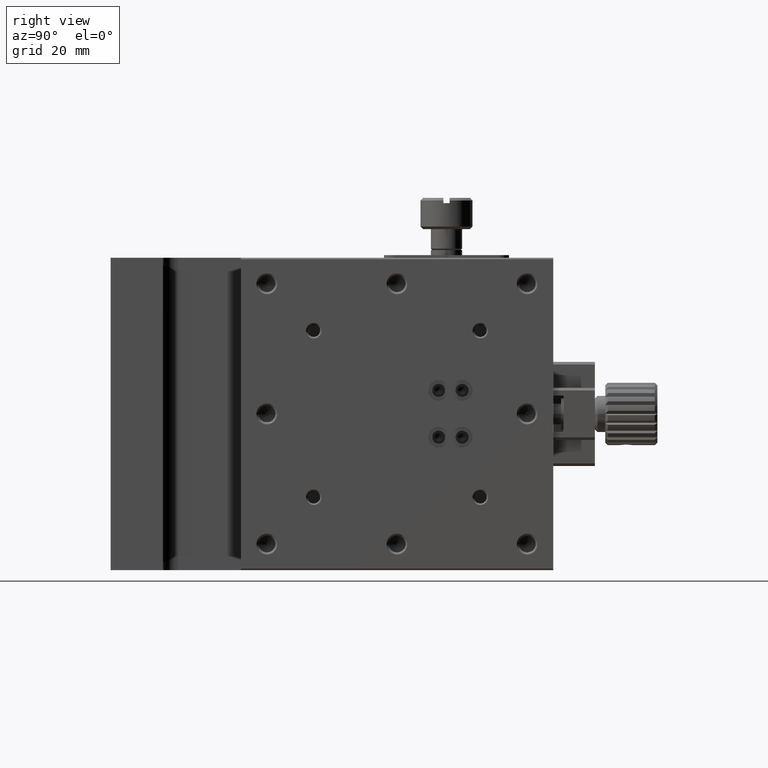
[diagram: clean part render]
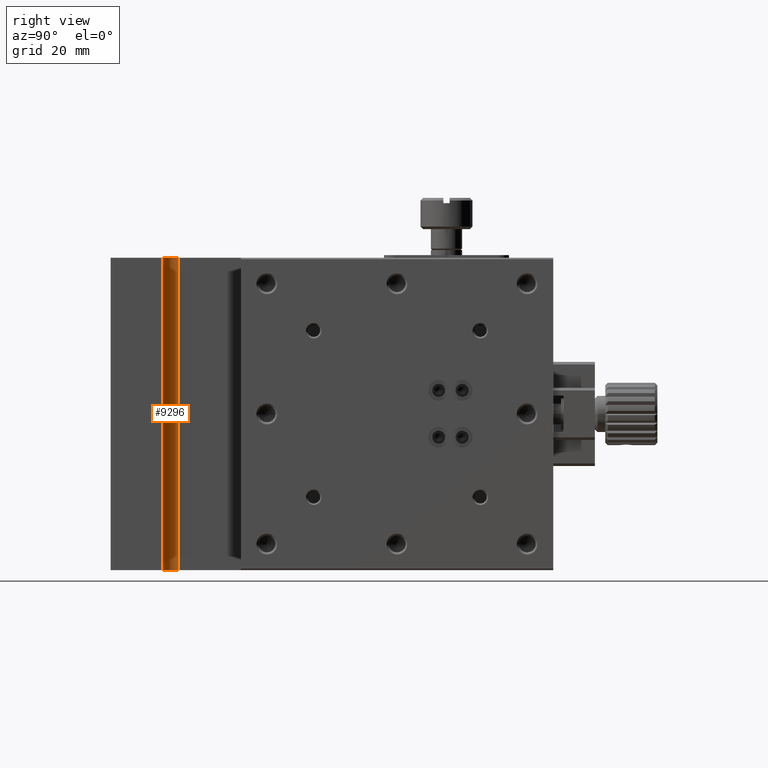
[diagram: same view with one face highlighted and labeled with its STEP entity id]
A machine part, right view. The second image highlights one B-rep face of the part: STEP entity #9296.
In plain terms, the highlighted cylindrical surface (edge-blend (fillet) strip) has radius 3 mm, axis along (0, 0, 1).
Its self-contained STEP definition (entity closure, byte-faithful):
#41 = VERTEX_POINT ( 'NONE', #7887 ) ;
#220 = VECTOR ( 'NONE', #8820, 1000.000000000000000 ) ;
#1036 = DIRECTION ( 'NONE',  ( 1.000000000000000000, 0.000000000000000000, 0.000000000000000000 ) ) ;
#2262 = CARTESIAN_POINT ( 'NONE',  ( 23.00000000000000000, 13.00000000000000178, 0.000000000000000000 ) ) ;
#2314 = LINE ( 'NONE', #3070, #220 ) ;
#2317 = EDGE_CURVE ( 'NONE', #6516, #5144, #2314, .T. ) ;
#2666 = CYLINDRICAL_SURFACE ( 'NONE', #6064, 2.999999999999999112 ) ;
#2992 = ORIENTED_EDGE ( 'NONE', *, *, #6984, .F. ) ;
#3028 = DIRECTION ( 'NONE',  ( -0.000000000000000000, -0.000000000000000000, -1.000000000000000000 ) ) ;
#3070 = CARTESIAN_POINT ( 'NONE',  ( 23.00000000000000000, 10.00000000000000178, -60.00000000000000000 ) ) ;
#3186 = CARTESIAN_POINT ( 'NONE',  ( 23.00000000000000000, 10.00000000000000178, -60.00000000000000000 ) ) ;
#3359 = CARTESIAN_POINT ( 'NONE',  ( 20.00000000000000000, 13.00000000000000178, -60.00000000000000000 ) ) ;
#3713 = CARTESIAN_POINT ( 'NONE',  ( 23.00000000000000000, 13.00000000000000178, -60.00000000000000000 ) ) ;
#3855 = DIRECTION ( 'NONE',  ( 1.000000000000000000, 0.000000000000000000, 0.000000000000000000 ) ) ;
#4059 = CARTESIAN_POINT ( 'NONE',  ( 23.00000000000000000, 13.00000000000000178, -60.00000000000000000 ) ) ;
#4414 = FACE_OUTER_BOUND ( 'NONE', #9010, .T. ) ;
#4458 = VERTEX_POINT ( 'NONE', #7472 ) ;
#4565 = ORIENTED_EDGE ( 'NONE', *, *, #2317, .F. ) ;
#4770 = LINE ( 'NONE', #3359, #7248 ) ;
#5144 = VERTEX_POINT ( 'NONE', #10448 ) ;
#5169 = AXIS2_PLACEMENT_3D ( 'NONE', #2262, #3028, #3855 ) ;
#5859 = CIRCLE ( 'NONE', #5169, 2.999999999999999112 ) ;
#6050 = EDGE_CURVE ( 'NONE', #41, #4458, #4770, .T. ) ;
#6064 = AXIS2_PLACEMENT_3D ( 'NONE', #3713, #9239, #1036 ) ;
#6480 = EDGE_CURVE ( 'NONE', #6516, #4458, #10535, .T. ) ;
#6516 = VERTEX_POINT ( 'NONE', #3186 ) ;
#6592 = DIRECTION ( 'NONE',  ( -0.000000000000000000, -0.000000000000000000, -1.000000000000000000 ) ) ;
#6984 = EDGE_CURVE ( 'NONE', #5144, #41, #5859, .T. ) ;
#7248 = VECTOR ( 'NONE', #8939, 1000.000000000000000 ) ;
#7472 = CARTESIAN_POINT ( 'NONE',  ( 20.00000000000000000, 13.00000000000000178, -60.00000000000000000 ) ) ;
#7887 = CARTESIAN_POINT ( 'NONE',  ( 20.00000000000000000, 13.00000000000000178, 0.000000000000000000 ) ) ;
#7978 = ORIENTED_EDGE ( 'NONE', *, *, #6480, .T. ) ;
#8272 = DIRECTION ( 'NONE',  ( 1.000000000000000000, 0.000000000000000000, 0.000000000000000000 ) ) ;
#8280 = AXIS2_PLACEMENT_3D ( 'NONE', #4059, #6592, #8272 ) ;
#8820 = DIRECTION ( 'NONE',  ( 0.000000000000000000, 0.000000000000000000, 1.000000000000000000 ) ) ;
#8939 = DIRECTION ( 'NONE',  ( 0.000000000000000000, 0.000000000000000000, -1.000000000000000000 ) ) ;
#9010 = EDGE_LOOP ( 'NONE', ( #4565, #7978, #9229, #2992 ) ) ;
#9229 = ORIENTED_EDGE ( 'NONE', *, *, #6050, .F. ) ;
#9239 = DIRECTION ( 'NONE',  ( 0.000000000000000000, 0.000000000000000000, 1.000000000000000000 ) ) ;
#9296 = ADVANCED_FACE ( 'NONE', ( #4414 ), #2666, .F. ) ;
#10448 = CARTESIAN_POINT ( 'NONE',  ( 23.00000000000000000, 10.00000000000000178, 0.000000000000000000 ) ) ;
#10535 = CIRCLE ( 'NONE', #8280, 2.999999999999999112 ) ;